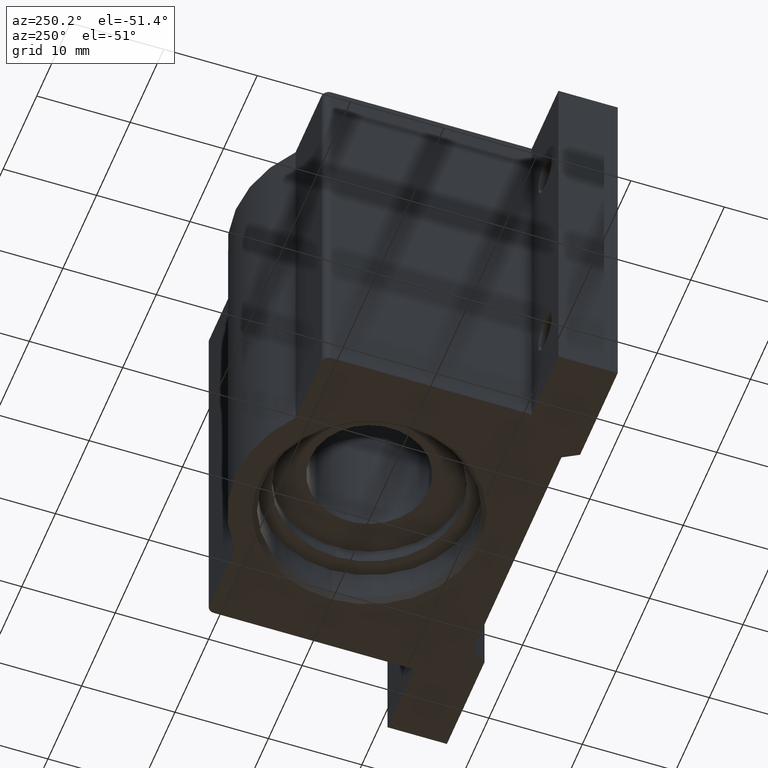
[diagram: clean part render]
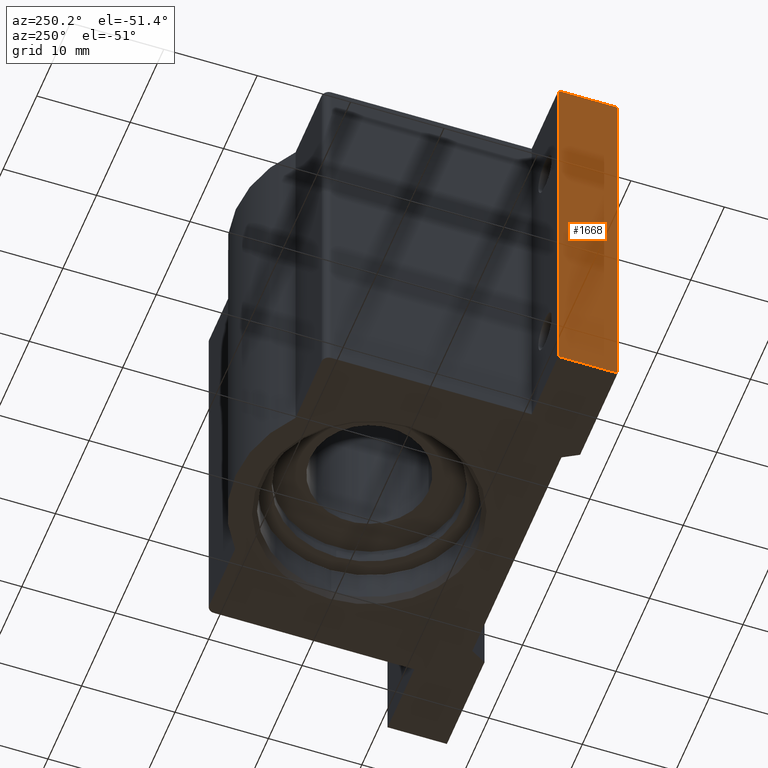
[diagram: same view with one face highlighted and labeled with its STEP entity id]
A machine part, auxiliary view. The second image highlights one B-rep face of the part: STEP entity #1668.
In plain terms, the highlighted planar face has unit normal (-1, 0, 0).
Its self-contained STEP definition (entity closure, byte-faithful):
#32 = LINE ( 'NONE', #179, #3220 ) ;
#179 = CARTESIAN_POINT ( 'NONE',  ( -1.000000000000000000, 0.0000000000000000000, -0.8440000000000000835 ) ) ;
#182 = EDGE_CURVE ( 'NONE', #3921, #2923, #32, .T. ) ;
#271 = ORIENTED_EDGE ( 'NONE', *, *, #2051, .F. ) ;
#353 = CARTESIAN_POINT ( 'NONE',  ( -1.000000000000000000, -0.4370000000000001661, 0.8439999999999997504 ) ) ;
#460 = LINE ( 'NONE', #487, #1546 ) ;
#487 = CARTESIAN_POINT ( 'NONE',  ( -1.000000000000000000, 0.0000000000000000000, 0.8439999999999997504 ) ) ;
#543 = FACE_OUTER_BOUND ( 'NONE', #1119, .T. ) ;
#684 = ORIENTED_EDGE ( 'NONE', *, *, #3094, .F. ) ;
#693 = LINE ( 'NONE', #2842, #1360 ) ;
#910 = VERTEX_POINT ( 'NONE', #1132 ) ;
#940 = CARTESIAN_POINT ( 'NONE',  ( -1.000000000000000000, -0.4370000000000001661, -0.8440000000000003055 ) ) ;
#1119 = EDGE_LOOP ( 'NONE', ( #271, #684, #3597, #3484 ) ) ;
#1132 = CARTESIAN_POINT ( 'NONE',  ( -1.000000000000000000, -0.6870000000000000551, 0.8439999999999997504 ) ) ;
#1280 = EDGE_CURVE ( 'NONE', #2923, #3366, #693, .T. ) ;
#1360 = VECTOR ( 'NONE', #2689, 39.37007874015748143 ) ;
#1393 = DIRECTION ( 'NONE',  ( 0.0000000000000000000, -1.000000000000000000, 0.0000000000000000000 ) ) ;
#1435 = VECTOR ( 'NONE', #3282, 39.37007874015748143 ) ;
#1546 = VECTOR ( 'NONE', #1393, 39.37007874015748143 ) ;
#1668 = ADVANCED_FACE ( 'NONE', ( #543 ), #3035, .T. ) ;
#2008 = DIRECTION ( 'NONE',  ( 0.0000000000000000000, 1.000000000000000000, 0.0000000000000000000 ) ) ;
#2051 = EDGE_CURVE ( 'NONE', #910, #3921, #3105, .T. ) ;
#2437 = CARTESIAN_POINT ( 'NONE',  ( -1.000000000000000000, 0.0000000000000000000, -1.256984563876181848 ) ) ;
#2689 = DIRECTION ( 'NONE',  ( 0.0000000000000000000, 0.0000000000000000000, 1.000000000000000000 ) ) ;
#2722 = DIRECTION ( 'NONE',  ( -1.000000000000000000, 0.0000000000000000000, 0.0000000000000000000 ) ) ;
#2782 = AXIS2_PLACEMENT_3D ( 'NONE', #2437, #2722, #3665 ) ;
#2842 = CARTESIAN_POINT ( 'NONE',  ( -1.000000000000000000, -0.4370000000000001661, -1.256984563876181848 ) ) ;
#2909 = CARTESIAN_POINT ( 'NONE',  ( -1.000000000000000000, -0.6870000000000000551, -1.256984563876181848 ) ) ;
#2923 = VERTEX_POINT ( 'NONE', #940 ) ;
#3035 = PLANE ( 'NONE',  #2782 ) ;
#3081 = CARTESIAN_POINT ( 'NONE',  ( -1.000000000000000000, -0.6870000000000000551, -0.8440000000000000835 ) ) ;
#3094 = EDGE_CURVE ( 'NONE', #3366, #910, #460, .T. ) ;
#3105 = LINE ( 'NONE', #2909, #1435 ) ;
#3220 = VECTOR ( 'NONE', #2008, 39.37007874015748143 ) ;
#3282 = DIRECTION ( 'NONE',  ( 0.0000000000000000000, 0.0000000000000000000, -1.000000000000000000 ) ) ;
#3366 = VERTEX_POINT ( 'NONE', #353 ) ;
#3484 = ORIENTED_EDGE ( 'NONE', *, *, #182, .F. ) ;
#3597 = ORIENTED_EDGE ( 'NONE', *, *, #1280, .F. ) ;
#3665 = DIRECTION ( 'NONE',  ( 0.0000000000000000000, 0.0000000000000000000, 1.000000000000000000 ) ) ;
#3921 = VERTEX_POINT ( 'NONE', #3081 ) ;